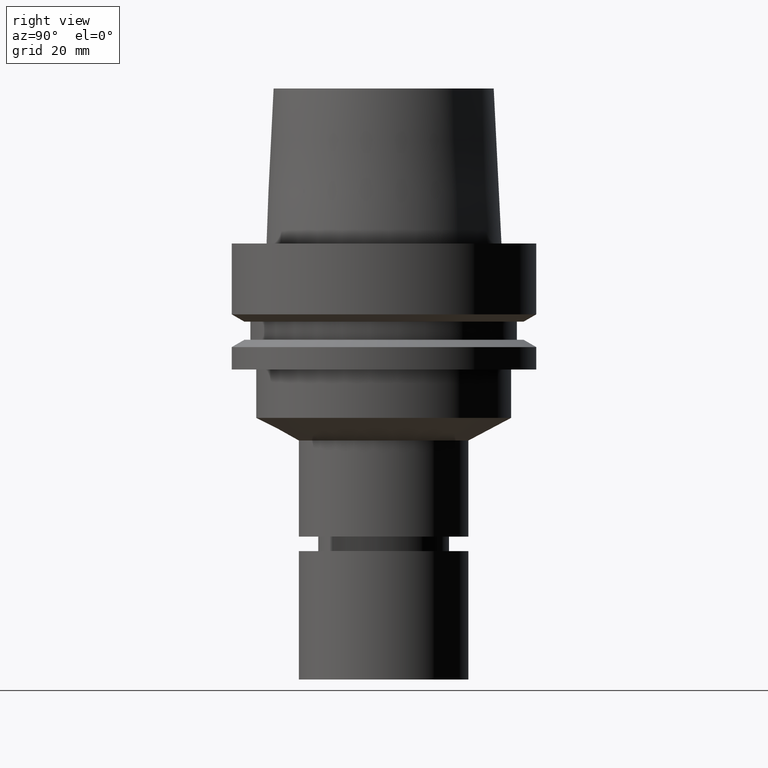
[diagram: clean part render]
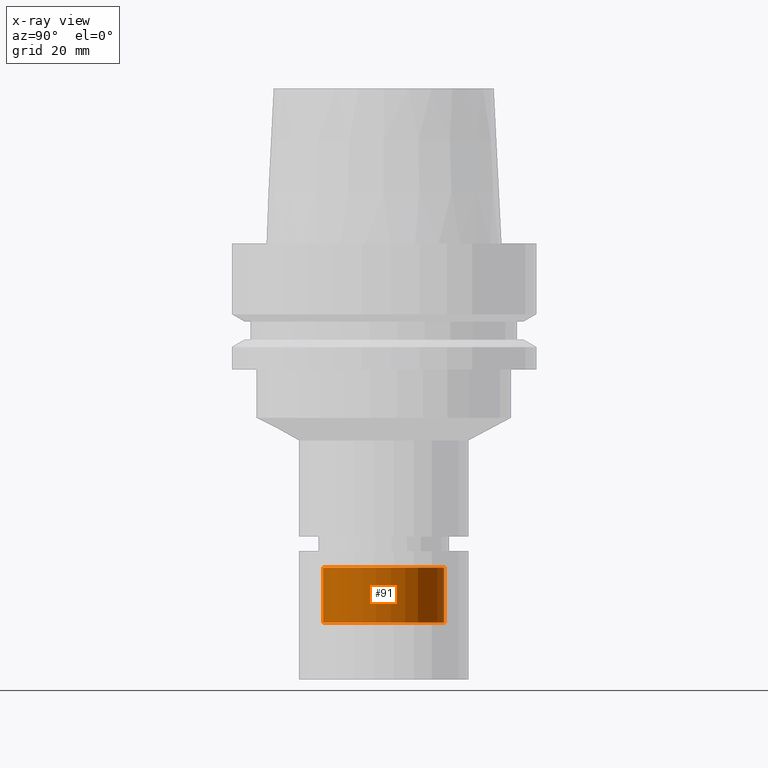
[diagram: x-ray — body ghosted, one internal face saturated and labeled with its STEP entity id]
A machine part, right view, then the same camera in x-ray: the body is ghosted and one INTERNAL B-rep face — a face not visible from any outside direction — is saturated and labeled: STEP entity #91.
In plain terms, the highlighted cylindrical surface (bore or boss wall) has radius 12.5 mm, axis along (-0, -0, 1).
Its self-contained STEP definition (entity closure, byte-faithful):
#91=ADVANCED_FACE('Unnamed[1]',(#234,#235),#236,.T.);
#146=EDGE_CURVE('Unnamed[1]',#318,#318,#319,.T.);
#154=EDGE_CURVE('Unnamed[1]',#330,#330,#331,.T.);
#234=FACE_BOUND('',#430,.T.);
#235=FACE_BOUND('',#431,.T.);
#236=CYLINDRICAL_SURFACE('',#432,12.4999999999999);
#318=VERTEX_POINT('',#535);
#319=CIRCLE('',#536,12.4999999999998);
#330=VERTEX_POINT('',#550);
#331=CIRCLE('',#551,12.4999999999999);
#430=EDGE_LOOP('',(#652));
#431=EDGE_LOOP('',(#653));
#432=AXIS2_PLACEMENT_3D('',#654,#655,#656);
#535=CARTESIAN_POINT('',(4.79417038832104E-015,12.4999999999998,-78.2947441116725));
#536=AXIS2_PLACEMENT_3D('',#745,#746,#747);
#550=CARTESIAN_POINT('',(4.09642365087913E-015,12.4999999999999,-66.8996751345975));
#551=AXIS2_PLACEMENT_3D('',#759,#760,#761);
#652=ORIENTED_EDGE('',*,*,#154,.F.);
#653=ORIENTED_EDGE('',*,*,#146,.T.);
#654=CARTESIAN_POINT('',(4.44529701960009E-015,8.89059403920017E-015,-72.597209623135));
#655=DIRECTION('',(-6.12323399573677E-017,-1.22464679914735E-016,1.0));
#656=DIRECTION('',(-1.23259516440783E-032,1.0,1.22464679914735E-016));
#745=CARTESIAN_POINT('',(4.79417038832104E-015,9.58834077664208E-015,-78.2947441116725));
#746=DIRECTION('',(-6.12323399573677E-017,-1.22464679914735E-016,1.0));
#747=DIRECTION('',(-1.23259516440783E-032,1.0,1.22464679914735E-016));
#759=CARTESIAN_POINT('',(4.09642365087913E-015,8.19284730175826E-015,-66.8996751345975));
#760=DIRECTION('',(-6.12323399573677E-017,-1.22464679914735E-016,1.0));
#761=DIRECTION('',(-1.23259516440783E-032,1.0,1.22464679914735E-016));